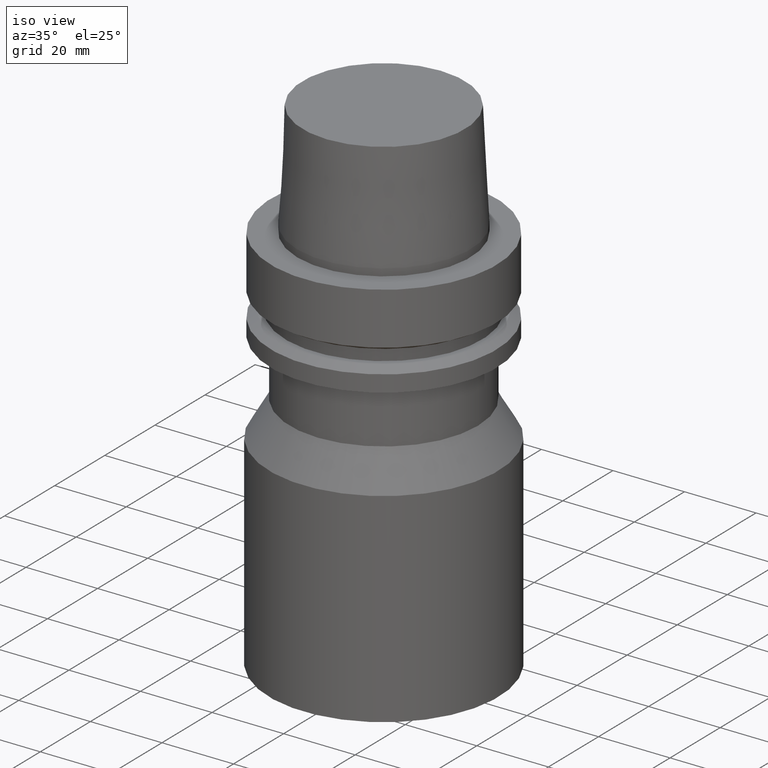
[diagram: clean part render]
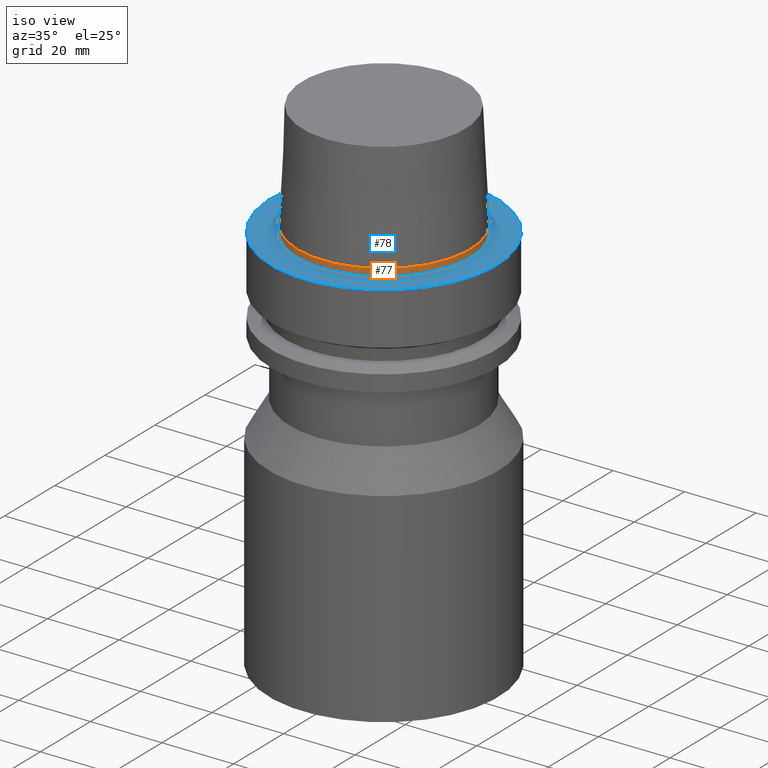
[diagram: same view with the hole feature highlighted: cylindrical wall and planar end face, labeled with their STEP entity ids]
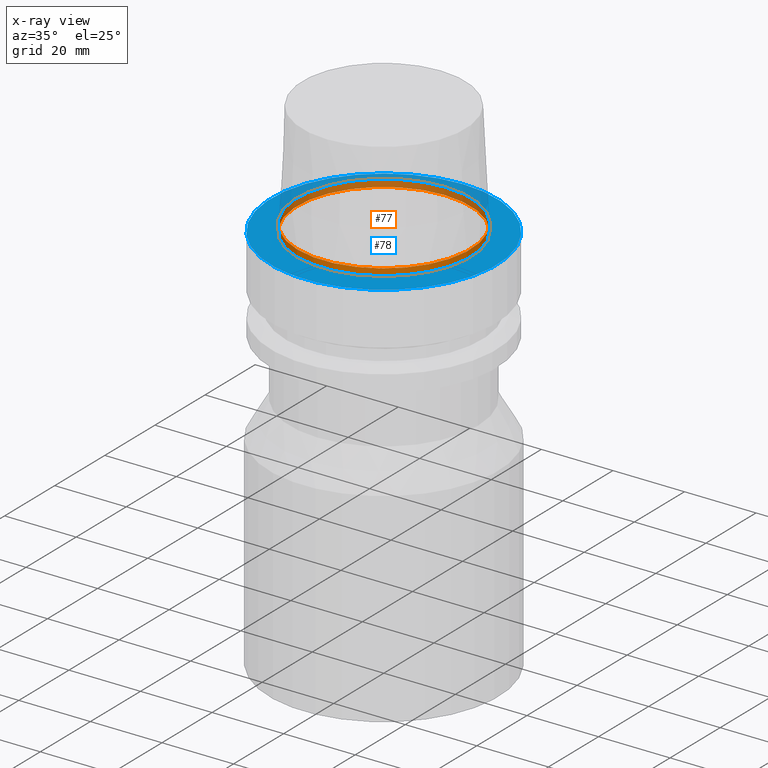
[diagram: x-ray of the same camera — body ghosted, the hole faces saturated]
A machine part, iso view. The highlighted faces form one hole feature of diameter 48.43 mm: the cylindrical wall (entity #77, orange) and its adjacent planar end face (entity #78, blue) — they share a circular edge in the B-rep.
The next image is the same camera in x-ray (body ghosted, the hole faces saturated) — the bore reads through the body.
Wall:
#77=ADVANCED_FACE('',(#97,#98),#99,.T.);
#97=FACE_BOUND('',#143,.T.);
#98=FACE_BOUND('',#144,.T.);
#99=CYLINDRICAL_SURFACE('',#145,24.215);
#143=EDGE_LOOP('',(#193));
#144=EDGE_LOOP('',(#194));
#145=AXIS2_PLACEMENT_3D('',#195,#196,#197);
#193=ORIENTED_EDGE('',*,*,#264,.F.);
#194=ORIENTED_EDGE('',*,*,#263,.T.);
#195=CARTESIAN_POINT('',(-6.12323399573677E-017,-1.22464679914735E-016,1.0));
#196=DIRECTION('',(-6.12323399573677E-017,-1.22464679914735E-016,1.0));
#197=DIRECTION('',(-1.23259516440783E-032,1.0,1.22464679914735E-016));
#263=EDGE_CURVE('',#279,#279,#280,.T.);
#264=EDGE_CURVE('',#281,#281,#282,.T.);
#279=VERTEX_POINT('',#309);
#280=CIRCLE('',#310,24.215);
#281=VERTEX_POINT('',#311);
#282=CIRCLE('',#312,24.215);
#309=CARTESIAN_POINT('',(-1.22464679914736E-016,24.215,2.0));
#310=AXIS2_PLACEMENT_3D('',#340,#341,#342);
#311=CARTESIAN_POINT('',(-2.98472919061356E-031,24.215,2.96548222413532E-015));
#312=AXIS2_PLACEMENT_3D('',#343,#344,#345);
#340=CARTESIAN_POINT('',(-1.22464679914735E-016,-2.44929359829471E-016,2.0));
#341=DIRECTION('',(6.12323399573677E-017,1.22464679914735E-016,-1.0));
#342=DIRECTION('',(-1.23259516440783E-032,1.0,1.22464679914735E-016));
#343=CARTESIAN_POINT('',(0.0,0.0,0.0));
#344=DIRECTION('',(6.12323399573677E-017,1.22464679914735E-016,-1.0));
#345=DIRECTION('',(-1.23259516440783E-032,1.0,1.22464679914735E-016));
End face:
#78=ADVANCED_FACE('',(#100,#101),#102,.T.);
#100=FACE_OUTER_BOUND('',#146,.T.);
#101=FACE_BOUND('',#147,.T.);
#102=PLANE('',#148);
#146=EDGE_LOOP('',(#198));
#147=EDGE_LOOP('',(#199));
#148=AXIS2_PLACEMENT_3D('',#200,#201,#202);
#198=ORIENTED_EDGE('',*,*,#265,.F.);
#199=ORIENTED_EDGE('',*,*,#264,.T.);
#200=CARTESIAN_POINT('',(-3.43370197924912E-031,27.8575,3.41155982072474E-015));
#201=DIRECTION('',(-6.12323399573677E-017,-1.22464679914735E-016,1.0));
#202=DIRECTION('',(1.23259516440783E-032,-1.0,-1.22464679914735E-016));
#264=EDGE_CURVE('',#281,#281,#282,.T.);
#265=EDGE_CURVE('',#283,#283,#284,.T.);
#281=VERTEX_POINT('',#311);
#282=CIRCLE('',#312,24.215);
#283=VERTEX_POINT('',#313);
#284=CIRCLE('',#314,31.5);
#311=CARTESIAN_POINT('',(-2.98472919061356E-031,24.215,2.96548222413532E-015));
#312=AXIS2_PLACEMENT_3D('',#343,#344,#345);
#313=CARTESIAN_POINT('',(-3.88267476788467E-031,31.5,3.85763741731416E-015));
#314=AXIS2_PLACEMENT_3D('',#346,#347,#348);
#343=CARTESIAN_POINT('',(0.0,0.0,0.0));
#344=DIRECTION('',(6.12323399573677E-017,1.22464679914735E-016,-1.0));
#345=DIRECTION('',(-1.23259516440783E-032,1.0,1.22464679914735E-016));
#346=CARTESIAN_POINT('',(0.0,0.0,0.0));
#347=DIRECTION('',(6.12323399573677E-017,1.22464679914735E-016,-1.0));
#348=DIRECTION('',(-1.23259516440783E-032,1.0,1.22464679914735E-016));